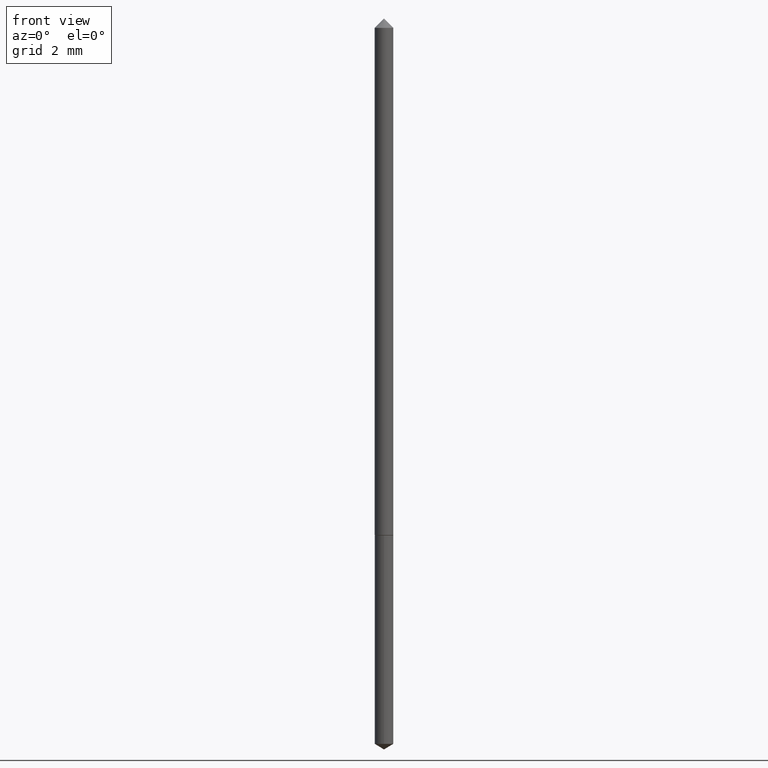
[diagram: clean part render]
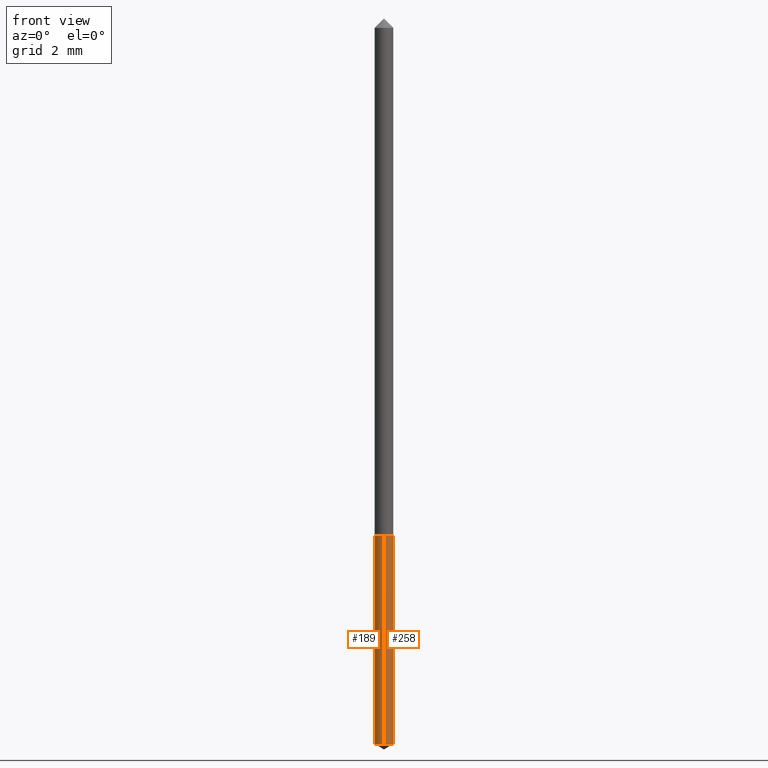
[diagram: same view with one multi-face feature highlighted, each face labeled with its STEP entity id]
A machine part, front view. The highlighted faces form ONE feature: a constant-radius fillet chain: 2 tangent blend faces with common blend radius 0.3175 mm. The faces share edges in the B-rep.
Their STEP definitions:
[1] entity #258 (Cylinder):
#6 = CARTESIAN_POINT ( 'NONE',  ( 8.881784197002994473E-17, 0.01249999999999751310, -0.7125000000000000222 ) ) ;
#8 = CYLINDRICAL_SURFACE ( 'NONE', #153, 0.01250000000000000069 ) ;
#12 = ORIENTED_EDGE ( 'NONE', *, *, #353, .T. ) ;
#20 = VECTOR ( 'NONE', #58, 39.37007874015748143 ) ;
#36 = DIRECTION ( 'NONE',  ( -2.445488057353773140E-29, 3.491453770073949474E-15, 1.000000000000000000 ) ) ;
#44 = EDGE_CURVE ( 'NONE', #360, #143, #221, .T. ) ;
#58 = DIRECTION ( 'NONE',  ( -2.445488057353773140E-29, 3.491453770073949080E-15, 1.000000000000000000 ) ) ;
#59 = ORIENTED_EDGE ( 'NONE', *, *, #44, .F. ) ;
#61 = CARTESIAN_POINT ( 'NONE',  ( -8.728703347106090499E-17, -0.01250000000000249002, -0.7125000000000000222 ) ) ;
#63 = LINE ( 'NONE', #6, #20 ) ;
#68 = EDGE_CURVE ( 'NONE', #358, #143, #63, .T. ) ;
#78 = EDGE_CURVE ( 'NONE', #103, #360, #348, .T. ) ;
#85 = CARTESIAN_POINT ( 'NONE',  ( 8.881784197003679796E-17, 0.01249999999999653645, -0.9924892422621556243 ) ) ;
#91 = DIRECTION ( 'NONE',  ( -2.445488057353773140E-29, 3.491453770073949474E-15, 1.000000000000000000 ) ) ;
#100 = ORIENTED_EDGE ( 'NONE', *, *, #78, .F. ) ;
#103 = VERTEX_POINT ( 'NONE', #234 ) ;
#110 = CARTESIAN_POINT ( 'NONE',  ( -8.728703347106090499E-17, -0.01250000000000249002, -0.7125000000000000222 ) ) ;
#113 = CARTESIAN_POINT ( 'NONE',  ( 2.427106872546543744E-29, -3.465249949402092799E-15, -0.9924892422621556243 ) ) ;
#117 = DIRECTION ( 'NONE',  ( -6.982962677686265133E-15, -1.000000000000000000, 0.000000000000000000 ) ) ;
#142 = DIRECTION ( 'NONE',  ( -6.982962677686265133E-15, -1.000000000000000000, 0.000000000000000000 ) ) ;
#143 = VERTEX_POINT ( 'NONE', #238 ) ;
#153 = AXIS2_PLACEMENT_3D ( 'NONE', #313, #91, #176 ) ;
#176 = DIRECTION ( 'NONE',  ( -6.982962677686265133E-15, -1.000000000000000000, 0.000000000000000000 ) ) ;
#178 = CIRCLE ( 'NONE', #205, 0.01250000000000000069 ) ;
#190 = VECTOR ( 'NONE', #314, 39.37007874015748143 ) ;
#203 = FACE_OUTER_BOUND ( 'NONE', #271, .T. ) ;
#205 = AXIS2_PLACEMENT_3D ( 'NONE', #113, #231, #117 ) ;
#221 = CIRCLE ( 'NONE', #337, 0.01250000000000000069 ) ;
#231 = DIRECTION ( 'NONE',  ( -2.445488057353773140E-29, 3.491453770073949474E-15, 1.000000000000000000 ) ) ;
#234 = CARTESIAN_POINT ( 'NONE',  ( -8.728703347105407641E-17, -0.01250000000000346667, -0.9924892422621556243 ) ) ;
#238 = CARTESIAN_POINT ( 'NONE',  ( 8.881784197003682261E-17, 0.01249999999999751310, -0.7125000000000000222 ) ) ;
#258 = ADVANCED_FACE ( 'NONE', ( #203 ), #8, .T. ) ;
#271 = EDGE_LOOP ( 'NONE', ( #12, #344, #59, #100 ) ) ;
#282 = CARTESIAN_POINT ( 'NONE',  ( 1.742396524406909713E-29, -2.487680453925741193E-15, -0.7125000000000000222 ) ) ;
#313 = CARTESIAN_POINT ( 'NONE',  ( 1.742396524406909713E-29, -2.487680453925741193E-15, -0.7125000000000000222 ) ) ;
#314 = DIRECTION ( 'NONE',  ( -2.445488057353773140E-29, 3.491453770073949080E-15, 1.000000000000000000 ) ) ;
#337 = AXIS2_PLACEMENT_3D ( 'NONE', #282, #36, #142 ) ;
#344 = ORIENTED_EDGE ( 'NONE', *, *, #68, .T. ) ;
#348 = LINE ( 'NONE', #110, #190 ) ;
#353 = EDGE_CURVE ( 'NONE', #103, #358, #178, .T. ) ;
#358 = VERTEX_POINT ( 'NONE', #85 ) ;
#360 = VERTEX_POINT ( 'NONE', #61 ) ;
[2] entity #189 (Cylinder):
#6 = CARTESIAN_POINT ( 'NONE',  ( 8.881784197002994473E-17, 0.01249999999999751310, -0.7125000000000000222 ) ) ;
#20 = VECTOR ( 'NONE', #58, 39.37007874015748143 ) ;
#54 = AXIS2_PLACEMENT_3D ( 'NONE', #235, #90, #204 ) ;
#58 = DIRECTION ( 'NONE',  ( -2.445488057353773140E-29, 3.491453770073949080E-15, 1.000000000000000000 ) ) ;
#61 = CARTESIAN_POINT ( 'NONE',  ( -8.728703347106090499E-17, -0.01250000000000249002, -0.7125000000000000222 ) ) ;
#63 = LINE ( 'NONE', #6, #20 ) ;
#68 = EDGE_CURVE ( 'NONE', #358, #143, #63, .T. ) ;
#77 = CYLINDRICAL_SURFACE ( 'NONE', #318, 0.01250000000000000069 ) ;
#78 = EDGE_CURVE ( 'NONE', #103, #360, #348, .T. ) ;
#85 = CARTESIAN_POINT ( 'NONE',  ( 8.881784197003679796E-17, 0.01249999999999653645, -0.9924892422621556243 ) ) ;
#87 = EDGE_CURVE ( 'NONE', #358, #103, #105, .T. ) ;
#90 = DIRECTION ( 'NONE',  ( -2.445488057353773140E-29, 3.491453770073949474E-15, 1.000000000000000000 ) ) ;
#94 = ORIENTED_EDGE ( 'NONE', *, *, #251, .F. ) ;
#103 = VERTEX_POINT ( 'NONE', #234 ) ;
#105 = CIRCLE ( 'NONE', #54, 0.01250000000000000069 ) ;
#110 = CARTESIAN_POINT ( 'NONE',  ( -8.728703347106090499E-17, -0.01250000000000249002, -0.7125000000000000222 ) ) ;
#139 = ORIENTED_EDGE ( 'NONE', *, *, #78, .T. ) ;
#143 = VERTEX_POINT ( 'NONE', #238 ) ;
#148 = ORIENTED_EDGE ( 'NONE', *, *, #68, .F. ) ;
#188 = DIRECTION ( 'NONE',  ( -6.982962677686265133E-15, -1.000000000000000000, 0.000000000000000000 ) ) ;
#189 = ADVANCED_FACE ( 'NONE', ( #334 ), #77, .T. ) ;
#190 = VECTOR ( 'NONE', #314, 39.37007874015748143 ) ;
#204 = DIRECTION ( 'NONE',  ( -6.982962677686265133E-15, -1.000000000000000000, 0.000000000000000000 ) ) ;
#206 = CIRCLE ( 'NONE', #213, 0.01250000000000000069 ) ;
#212 = DIRECTION ( 'NONE',  ( -2.445488057353773140E-29, 3.491453770073949474E-15, 1.000000000000000000 ) ) ;
#213 = AXIS2_PLACEMENT_3D ( 'NONE', #350, #212, #300 ) ;
#234 = CARTESIAN_POINT ( 'NONE',  ( -8.728703347105407641E-17, -0.01250000000000346667, -0.9924892422621556243 ) ) ;
#235 = CARTESIAN_POINT ( 'NONE',  ( 2.427106872546543744E-29, -3.465249949402092799E-15, -0.9924892422621556243 ) ) ;
#238 = CARTESIAN_POINT ( 'NONE',  ( 8.881784197003682261E-17, 0.01249999999999751310, -0.7125000000000000222 ) ) ;
#246 = CARTESIAN_POINT ( 'NONE',  ( 1.742396524406909713E-29, -2.487680453925741193E-15, -0.7125000000000000222 ) ) ;
#251 = EDGE_CURVE ( 'NONE', #143, #360, #206, .T. ) ;
#262 = ORIENTED_EDGE ( 'NONE', *, *, #87, .T. ) ;
#298 = EDGE_LOOP ( 'NONE', ( #148, #262, #139, #94 ) ) ;
#300 = DIRECTION ( 'NONE',  ( -6.982962677686265133E-15, -1.000000000000000000, 0.000000000000000000 ) ) ;
#314 = DIRECTION ( 'NONE',  ( -2.445488057353773140E-29, 3.491453770073949080E-15, 1.000000000000000000 ) ) ;
#318 = AXIS2_PLACEMENT_3D ( 'NONE', #246, #349, #188 ) ;
#334 = FACE_OUTER_BOUND ( 'NONE', #298, .T. ) ;
#348 = LINE ( 'NONE', #110, #190 ) ;
#349 = DIRECTION ( 'NONE',  ( -2.445488057353773140E-29, 3.491453770073949474E-15, 1.000000000000000000 ) ) ;
#350 = CARTESIAN_POINT ( 'NONE',  ( 1.742396524406909713E-29, -2.487680453925741193E-15, -0.7125000000000000222 ) ) ;
#358 = VERTEX_POINT ( 'NONE', #85 ) ;
#360 = VERTEX_POINT ( 'NONE', #61 ) ;